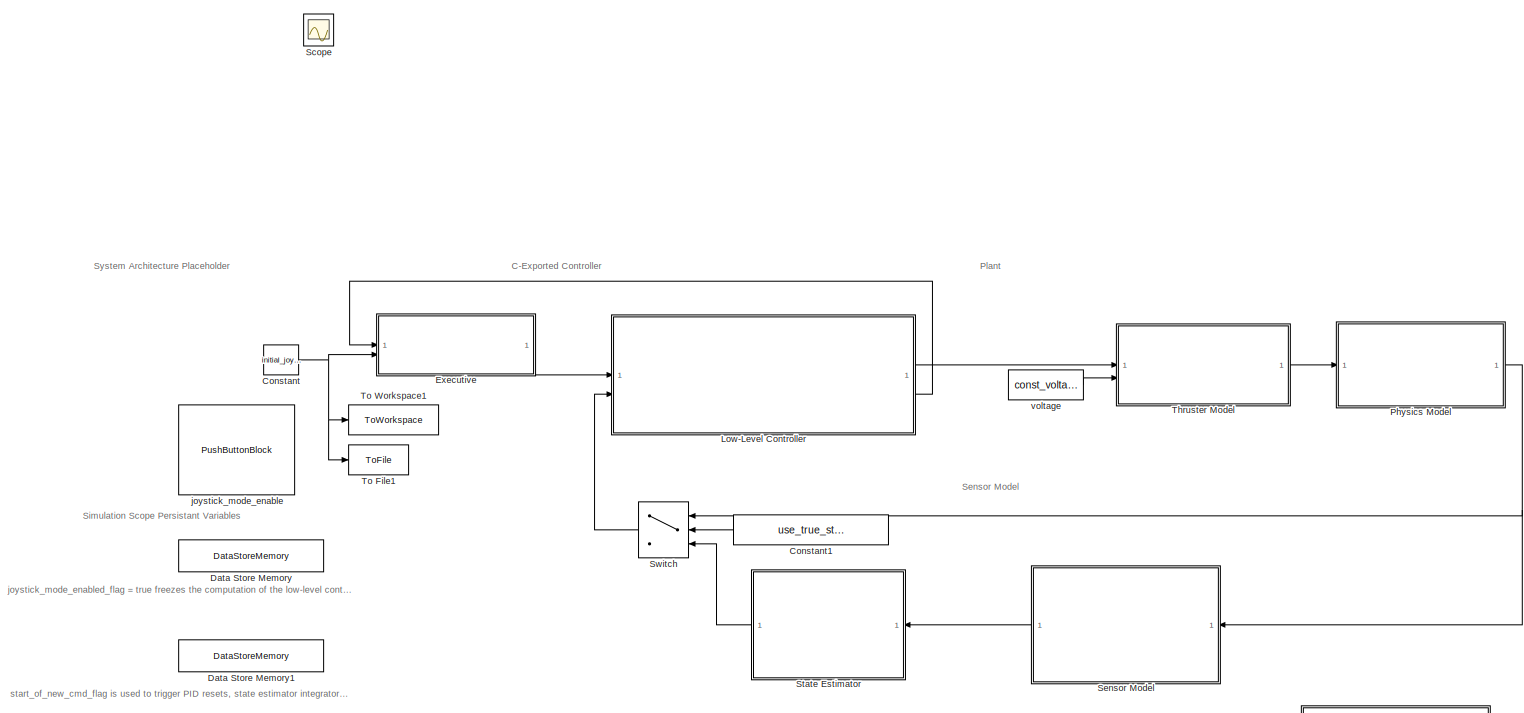
[diagram: root canvas - part 1/2, most of the canvas]
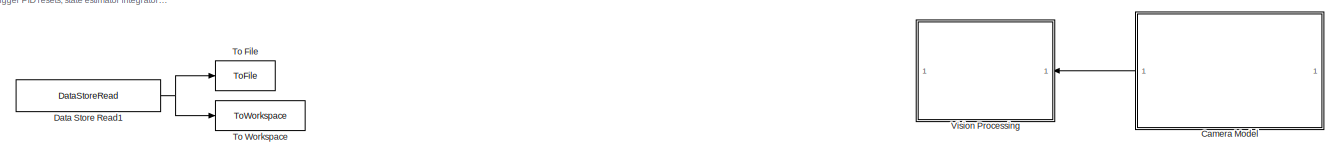
[diagram: root canvas - part 2/2, full width, bottom band]
MODEL slx_aa22800b383f
KIND model
CONFIG AbsTol = abs_tol
CONFIG EnableMultiTasking = off
CONFIG FixedStep = dt_sim
CONFIG MaxStep = auto
CONFIG MinStep = auto
CONFIG RelTol = rel_tol
CONFIG SampleTimeConstraint = Unconstrained
CONFIG SolverName = FixedStepDiscrete
CONFIG StartTime = 0.0
CONFIG StopTime = tspan
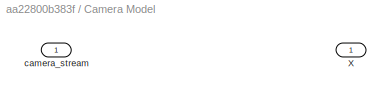
BLOCK [SubSystem] Camera Model
BLOCK [Inport] Camera Model/X
BLOCK [Outport] Camera Model/camera_stream
BLOCK [Constant] Constant
  Value = initial_joystick_mode_enabled_flag
BLOCK [Constant] Constant1
  Value = use_true_state_flag
BLOCK [DataStoreMemory] Data Store Memory
  DataStoreName = joystick_mode_enabled_flag
  InitialValue = initial_joystick_mode_enabled_flag
  OutDataTypeStr = boolean
  ShowAdditionalParam = off
  WriteAfterWriteMsg = warning
BLOCK [DataStoreMemory] Data Store Memory1
  DataStoreName = start_new_cmd_flag
  InitialValue = true
  OutDataTypeStr = boolean
  ShowAdditionalParam = off
  WriteAfterWriteMsg = warning
BLOCK [DataStoreRead] Data Store Read1
  DataStoreName = start_new_cmd_flag
  IndexOptions = Index vector (dialog)
  Indices = 1
  OutputSizes = 1
BLOCK [SubSystem] Executive
  ReferencedSubsystem = Executive
BLOCK [SubSystem] Low-Level Controller
  ReferencedSubsystem = controller
BLOCK [SubSystem] Physics Model
  ReferencedSubsystem = plant
BLOCK [Scope] Scope
  ActiveDisplayYMaximum = 0.79721663606048965
  ActiveDisplayYMinimum = -0.048832566475369238
  Floating = off
  GraphicalSettings = {"Style":{"BackgroundColor":[0.12941176470588237,0.12941176470588237,0.12941176470588237],"AxesColor":[0.07058823529411765,0.07058823529411765,0.07058823529411765],"LabelsColor":[0.8509803921568627,0.8509803921568627,0.8509803921568627],"PreserveColors":false,"Visible":[true,true,true,true,true,true,true,true,true,true,true,true,true],"LineStyle":["-","-","-","-","-","-","-","-","-","-","-","-","-...<+3592ch>
  IOType = viewer
  LayoutDimensionsString = [1,1]
  MultipleDisplayCache = [{"MaxYLimMag":1.125,"MaxYLimReal":0.79721663606048965,"MinYLimMag":0,"MinYLimReal":-0.048832566475369238,"PlotAsMagnitudePhase":false,"ShowGrid":true,"ShowLegend":false,"Title":"%<SignalLabel>","YLabel":""}]
  NumInputPorts = 1
  ScopeFrameLocation = window
  WasSavedAsWebScope = on
  WindowPosition = [1000.000000,510.000000,560.000000,420.000000,]
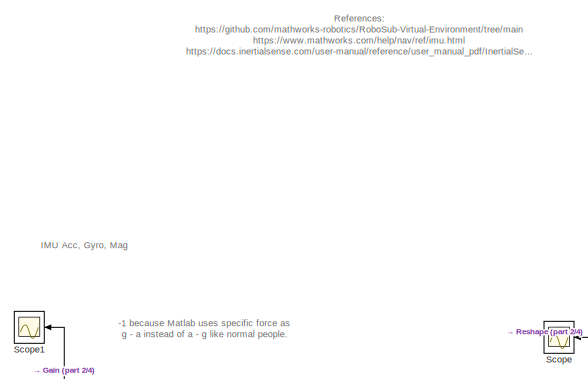
[diagram: Sensor Model - part 1/4, top center region]
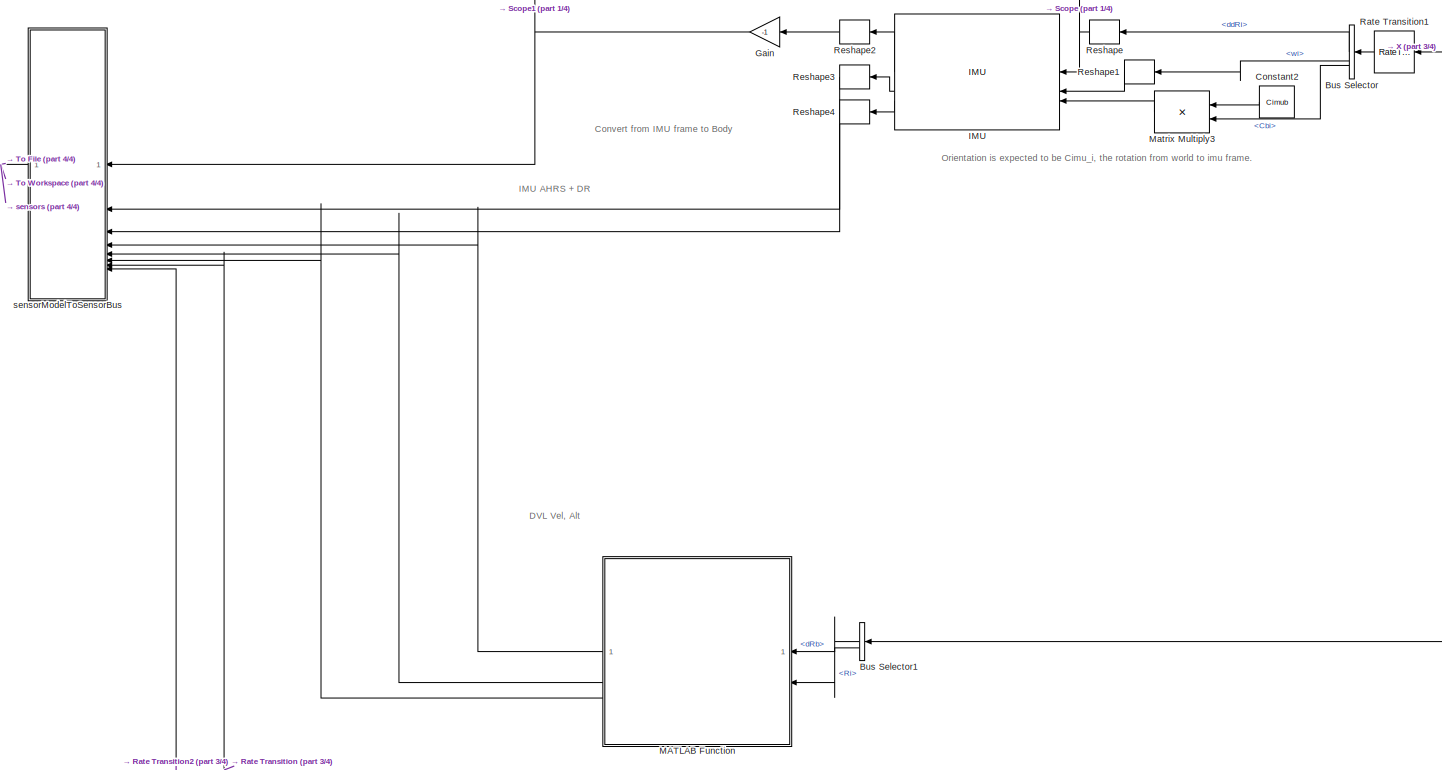
[diagram: Sensor Model - part 2/4, full width, middle band]
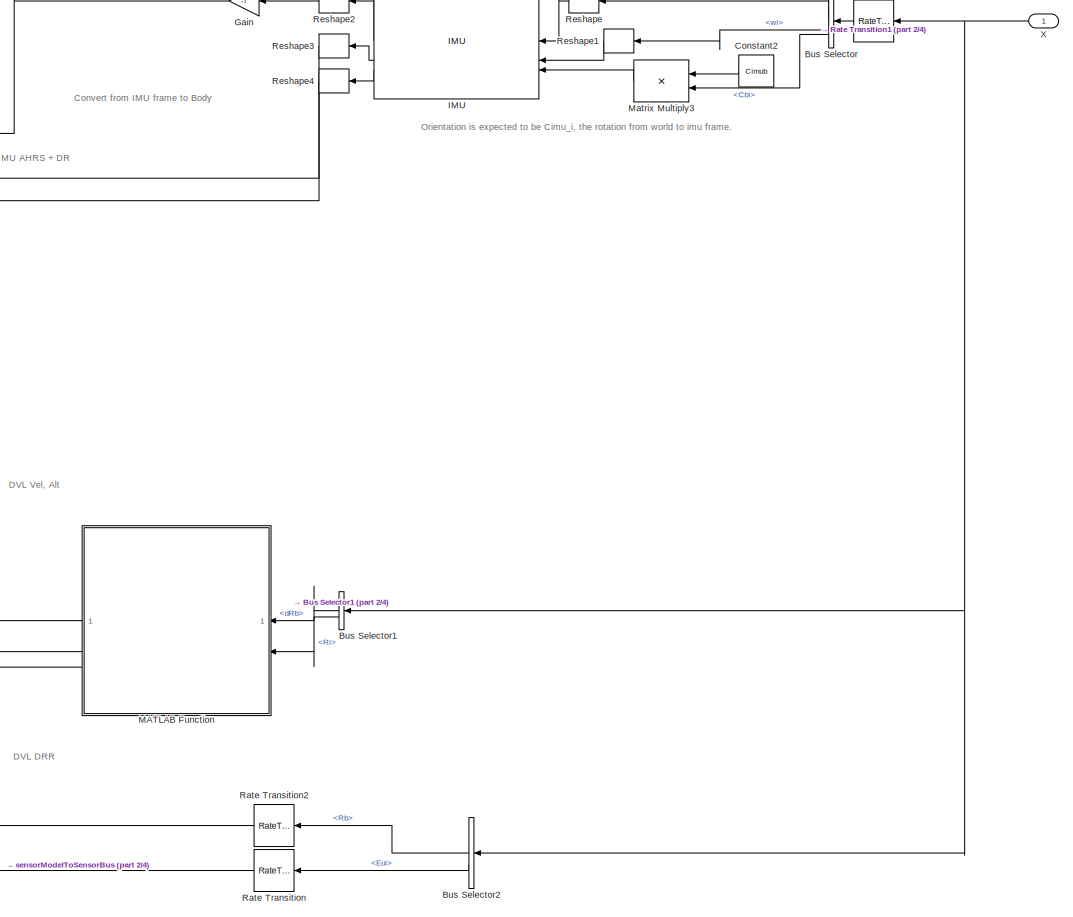
[diagram: Sensor Model - part 3/4, middle right region]
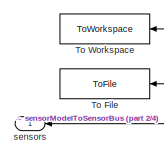
[diagram: Sensor Model - part 4/4, middle left region]
BLOCK [SubSystem] Sensor Model
BLOCK [BusSelector] Sensor Model/Bus Selector
  OutputSignals = ddRi,wi,Cbi
BLOCK [BusSelector] Sensor Model/Bus Selector1
  OutputSignals = dRb,Ri
BLOCK [BusSelector] Sensor Model/Bus Selector2
  OutputSignals = Rb,Eul
BLOCK [Constant] Sensor Model/Constant2
  Value = Cimub
BLOCK [Gain] Sensor Model/Gain
  Gain = -1
BLOCK [Reference] Sensor Model/IMU  REF=mspsensorlib/IMU
  SourceBlock = mspsensorlib/IMU
  SourceType = fusion.simulink.imuSensor
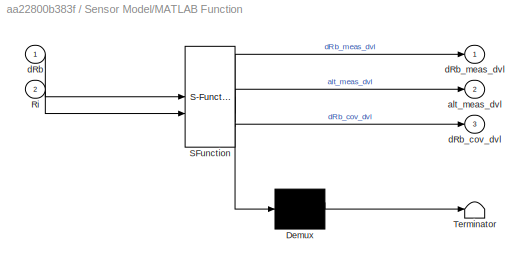
BLOCK [SubSystem] Sensor Model/MATLAB Function
  ErrorFcn = Stateflow.Translate.translate
  PermitHierarchicalResolution = ExplicitOnly
  SFBlockType = MATLAB Function
  TreatAsAtomicUnit = on
BLOCK [Demux] Sensor Model/MATLAB Function/ Demux 
  Outputs = 1
BLOCK [S-Function] Sensor Model/MATLAB Function/ SFunction 
  EnableBusSupport = off
  FunctionName = sf_sfun
  Parameters = dvl
  PortCounts = [2 4]
  SFcnIsStateOwnerBlock = off
  SFunctionDeploymentMode = off
  Tag = Stateflow S-Function 15
BLOCK [Terminator] Sensor Model/MATLAB Function/ Terminator 
BLOCK [Inport] Sensor Model/MATLAB Function/Ri
  Port = 2
BLOCK [Outport] Sensor Model/MATLAB Function/alt_meas_dvl
  Port = 2
BLOCK [Inport] Sensor Model/MATLAB Function/dRb
BLOCK [Outport] Sensor Model/MATLAB Function/dRb_cov_dvl
  Port = 3
BLOCK [Outport] Sensor Model/MATLAB Function/dRb_meas_dvl
BLOCK [Product] Sensor Model/Matrix Multiply3
  Multiplication = Matrix(*)
BLOCK [RateTransition] Sensor Model/Rate Transition
  OutPortSampleTime = dt_dvl
BLOCK [RateTransition] Sensor Model/Rate Transition1
  OutPortSampleTime = dt_imu
BLOCK [RateTransition] Sensor Model/Rate Transition2
  OutPortSampleTime = dt_dvl
BLOCK [Reshape] Sensor Model/Reshape
  OutputDimensionality = Row vector (2-D)
BLOCK [Reshape] Sensor Model/Reshape1
  OutputDimensionality = Row vector (2-D)
BLOCK [Reshape] Sensor Model/Reshape2
  OutputDimensionality = Column vector (2-D)
BLOCK [Reshape] Sensor Model/Reshape3
  OutputDimensionality = Column vector (2-D)
BLOCK [Reshape] Sensor Model/Reshape4
  OutputDimensionality = Column vector (2-D)
BLOCK [Scope] Sensor Model/Scope
  ActiveDisplayYMaximum = 1
  ActiveDisplayYMinimum = -1
  DataLoggingVariableName = ScopeData1
  Floating = off
  GraphicalSettings = {"Style":{"BackgroundColor":[0.12941176470588237,0.12941176470588237,0.12941176470588237],"AxesColor":[0.07058823529411765,0.07058823529411765,0.07058823529411765],"LabelsColor":[0.8509803921568627,0.8509803921568627,0.8509803921568627],"PreserveColors":false,"Visible":[true,true,true],"LineStyle":["-","-","-"],"LineWidth":[1.5,1.5,1.5],"BarWidth":[0.9,0.9,0.9],"LineColor":["auto","auto","auto"],"...<+2143ch>
  MultipleDisplayCache = [{"MaxYLimMag":1,"MaxYLimReal":1,"MinYLimMag":0,"MinYLimReal":-1,"PlotAsMagnitudePhase":false,"ShowGrid":true,"ShowLegend":false,"Title":"%<SignalLabel>","YLabel":""}]
  NumInputPorts = 1
  ScopeFrameLocation = window
  WasSavedAsWebScope = on
  WindowPosition = [680.000000,362.000000,560.000000,420.000000,]
BLOCK [Scope] Sensor Model/Scope1
  ActiveDisplayYMaximum = 1
  ActiveDisplayYMinimum = -1
  DataLoggingVariableName = ScopeData7
  Floating = off
  GraphicalSettings = {"Style":{"BackgroundColor":[0.12941176470588237,0.12941176470588237,0.12941176470588237],"AxesColor":[0.07058823529411765,0.07058823529411765,0.07058823529411765],"LabelsColor":[0.8509803921568627,0.8509803921568627,0.8509803921568627],"PreserveColors":false,"Visible":[true,true,true],"LineStyle":["-","-","-"],"LineWidth":[1.5,1.5,1.5],"BarWidth":[0.9,0.9,0.9],"LineColor":["auto","auto","auto"],"...<+2205ch>
  MultipleDisplayCache = [{"MaxYLimMag":1,"MaxYLimReal":1,"MinYLimMag":0,"MinYLimReal":-1,"PlotAsMagnitudePhase":false,"ShowGrid":true,"ShowLegend":false,"Title":"%<SignalLabel>","YLabel":""}]
  NumInputPorts = 1
  ScopeFrameLocation = window
  WasSavedAsWebScope = on
  WindowPosition = [274.000000,368.000000,560.000000,420.000000,]
BLOCK [ToFile] Sensor Model/To File
  Filename = <userpath>/Github/Robosub/SimulinkPlant/data/2026_05_09_12_19_38/sensors.mat
  MatrixName = sensors
  SaveFormat = Timeseries
BLOCK [ToWorkspace] Sensor Model/To Workspace
  Commented = on
  FixptAsFi = on
  MaxDataPoints = inf
  SampleTime = dt_data
  SaveFormat = Timeseries
  VariableName = sensors
BLOCK [Inport] Sensor Model/X
  OutDataTypeStr = Bus: X_bus
  SampleTime = dt_control
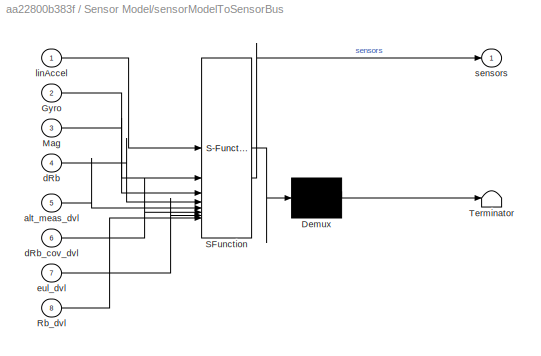
BLOCK [SubSystem] Sensor Model/sensorModelToSensorBus
  ErrorFcn = Stateflow.Translate.translate
  PermitHierarchicalResolution = ExplicitOnly
  SFBlockType = MATLAB Function
  TreatAsAtomicUnit = on
BLOCK [Demux] Sensor Model/sensorModelToSensorBus/ Demux 
  Outputs = 1
BLOCK [S-Function] Sensor Model/sensorModelToSensorBus/ SFunction 
  EnableBusSupport = off
  FunctionName = sf_sfun
  PortCounts = [8 2]
  SFcnIsStateOwnerBlock = off
  SFunctionDeploymentMode = off
  Tag = Stateflow S-Function 22
BLOCK [Terminator] Sensor Model/sensorModelToSensorBus/ Terminator 
BLOCK [Inport] Sensor Model/sensorModelToSensorBus/Gyro
  Port = 2
BLOCK [Inport] Sensor Model/sensorModelToSensorBus/Mag
  Port = 3
BLOCK [Inport] Sensor Model/sensorModelToSensorBus/Rb_dvl
  Port = 8
BLOCK [Inport] Sensor Model/sensorModelToSensorBus/alt_meas_dvl
  Port = 5
BLOCK [Inport] Sensor Model/sensorModelToSensorBus/dRb
  Port = 4
BLOCK [Inport] Sensor Model/sensorModelToSensorBus/dRb_cov_dvl
  Port = 6
BLOCK [Inport] Sensor Model/sensorModelToSensorBus/eul_dvl
  Port = 7
BLOCK [Inport] Sensor Model/sensorModelToSensorBus/linAccel
BLOCK [Outport] Sensor Model/sensorModelToSensorBus/sensors
BLOCK [Outport] Sensor Model/sensors
  OutDataTypeStr = Bus: sensor_bus
  SampleTime = dt_control
BLOCK [SubSystem] State Estimator
  ReferencedSubsystem = State_Estimator
BLOCK [Switch] Switch
  Criteria = u2 ~= 0
  InputSameDT = off
  SaturateOnIntegerOverflow = off
BLOCK [SubSystem] Thruster Model
  ReferencedSubsystem = pwm_to_force
BLOCK [ToFile] To File
  Filename = <userpath>/Github/Robosub/SimulinkPlant/data/2026_05_09_12_19_38/start_new_cmd_flag.mat
  MatrixName = start_new_cmd_flag
  SaveFormat = Timeseries
BLOCK [ToFile] To File1
  Filename = <userpath>/Github/Robosub/SimulinkPlant/data/2026_05_09_12_19_38/joystick_mode_enabled_flag.mat
  MatrixName = joystick_mode_enabled_flag
  SampleTime = dt_data
  SaveFormat = Timeseries
BLOCK [ToWorkspace] To Workspace
  Commented = on
  FixptAsFi = on
  MaxDataPoints = inf
  SampleTime = dt_data
  SaveFormat = Timeseries
  VariableName = start_new_cmd_flag
BLOCK [ToWorkspace] To Workspace1
  Commented = on
  FixptAsFi = on
  MaxDataPoints = inf
  SampleTime = dt_data
  SaveFormat = Timeseries
  VariableName = joystick_mode_enabled_flag
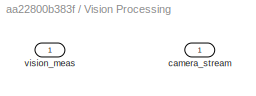
BLOCK [SubSystem] Vision Processing
BLOCK [Inport] Vision Processing/camera_stream
BLOCK [Outport] Vision Processing/vision_meas
BLOCK [PushButtonBlock] joystick_mode_enable
  ButtonType = Latch
  Commented = on
  IconOffColor = [0.0, 1.0, 0.0]
  IconOnColor = [0.0, 0.39215686274509803, 0.0]
  LabelPosition = Top
  OffValue = 0.000000
BLOCK [Constant] voltage
  Value = const_voltage
ANNOTATION (root): C-Exported Controller
ANNOTATION (root): Plant
ANNOTATION (root): Sensor Model
ANNOTATION (root): Simulation Scope Persistant Variables
ANNOTATION (root): System Architecture Placeholder
ANNOTATION (root): joystick_mode_enabled_flag = true freezes the computation of the low-level controller but keeps the state estimator running.
ANNOTATION (root): start_of_new_cmd_flag is used to trigger PID resets, state estimator integrator resets, and creation of body-relative waypoints for certain trick types.
ANNOTATION Sensor Model: -1 because Matlab uses specific force as g - a instead of a - g like normal people.
ANNOTATION Sensor Model: References: https://github.com/mathworks-robotics/RoboSub-Virtual-Environment/tree/main https://www.mathworks.com/help/nav/ref/imu.html https://docs.inertialsense.com/user-manual/reference/user_manual_pdf/InertialSenseDocs.pdf
ANNOTATION Sensor Model: Convert from IMU frame to Body
ANNOTATION Sensor Model: DVL DRR
ANNOTATION Sensor Model: DVL Vel, Alt
ANNOTATION Sensor Model: IMU AHRS + DR
ANNOTATION Sensor Model: IMU Acc, Gyro, Mag
ANNOTATION Sensor Model: Orientation is expected to be Cimu_i, the rotation from world to imu frame.
LINE Camera Model:1 -> Vision Processing:1
LINE Constant1:1 -> Switch:2
NET Constant:1 -> Executive:2, To File1:1, To Workspace1:1
NET Data Store Read1:1 -> To File:1, To Workspace:1
LINE Executive:1 -> Low-Level Controller:1
LINE Low-Level Controller:1 -> Thruster Model:1
LINE Low-Level Controller:2 -> Executive:1
NET Physics Model:1 -> Sensor Model:1, Switch:1
LINE Sensor Model/Bus Selector1:1 -> Sensor Model/MATLAB Function:1
LINE Sensor Model/Bus Selector1:2 -> Sensor Model/MATLAB Function:2
LINE Sensor Model/Bus Selector2:1 -> Sensor Model/Rate Transition2:1
LINE Sensor Model/Bus Selector2:2 -> Sensor Model/Rate Transition:1
LINE Sensor Model/Bus Selector:1 -> Sensor Model/Reshape:1
LINE Sensor Model/Bus Selector:2 -> Sensor Model/Reshape1:1
LINE Sensor Model/Bus Selector:3 -> Sensor Model/Matrix Multiply3:2
LINE Sensor Model/Constant2:1 -> Sensor Model/Matrix Multiply3:1
NET Sensor Model/Gain:1 -> Sensor Model/Scope1:1, Sensor Model/sensorModelToSensorBus:1
LINE Sensor Model/IMU:1 -> Sensor Model/Reshape2:1
LINE Sensor Model/IMU:2 -> Sensor Model/Reshape3:1
LINE Sensor Model/IMU:3 -> Sensor Model/Reshape4:1
LINE Sensor Model/MATLAB Function:1 -> Sensor Model/sensorModelToSensorBus:4
LINE Sensor Model/MATLAB Function:2 -> Sensor Model/sensorModelToSensorBus:5
LINE Sensor Model/MATLAB Function:3 -> Sensor Model/sensorModelToSensorBus:6
LINE Sensor Model/Matrix Multiply3:1 -> Sensor Model/IMU:3
LINE Sensor Model/Rate Transition1:1 -> Sensor Model/Bus Selector:1
LINE Sensor Model/Rate Transition2:1 -> Sensor Model/sensorModelToSensorBus:8
LINE Sensor Model/Rate Transition:1 -> Sensor Model/sensorModelToSensorBus:7
LINE Sensor Model/Reshape1:1 -> Sensor Model/IMU:2
LINE Sensor Model/Reshape2:1 -> Sensor Model/Gain:1
LINE Sensor Model/Reshape3:1 -> Sensor Model/sensorModelToSensorBus:2
LINE Sensor Model/Reshape4:1 -> Sensor Model/sensorModelToSensorBus:3
NET Sensor Model/Reshape:1 -> Sensor Model/IMU:1, Sensor Model/Scope:1
NET Sensor Model/X:1 -> Sensor Model/Bus Selector1:1, Sensor Model/Bus Selector2:1, Sensor Model/Rate Transition1:1
NET Sensor Model/sensorModelToSensorBus:1 -> Sensor Model/To File:1, Sensor Model/To Workspace:1, Sensor Model/sensors:1
LINE Sensor Model:1 -> State Estimator:1
LINE State Estimator:1 -> Switch:3
LINE Switch:1 -> Low-Level Controller:2
LINE Thruster Model:1 -> Physics Model:1
LINE voltage:1 -> Thruster Model:2
note: NET lines group one-source signal fan-out (src -> all destinations, sorted); 1:1 wires keep LINE
CHART Sensor Model/MATLAB Function states=1 transitions=1
  STATE_LABEL 'eML_blk_kernel()'
  STATE_LABEL 'SCRIPT:\nfunction [dRb_meas_dvl, alt_meas_dvl, dRb_cov_dvl] = dvl_sim(dRb, Ri,dvl)\n%{\nModel from this repository:\nhttps://github.com/mathworks-robotics/RoboSub-Virtual-Environment/\nNeed to modify this to give erroneous or no reading when ground lock is\navailable.\n\nAlso need to add noise to the altitude measurement and determine if it\nneeds modification based on attitude.\n%}\n%get altitude (assumes R...<+812ch>'
CHART Sensor Model/sensorModelToSensorBus states=1 transitions=1
  STATE_LABEL 'eML_blk_kernel()'
  STATE_LABEL 'SCRIPT:\nfunction sensors = fcn(linAccel,Gyro,Mag,dRb,alt_meas_dvl,dRb_cov_dvl, eul_dvl, Rb_dvl)\n\nsensors = sensorModelToSensorBus(linAccel,Gyro,Mag,dRb,alt_meas_dvl,dRb_cov_dvl, eul_dvl, Rb_dvl);\n\n'
CHART  states=0 transitions=0
CHART  states=0 transitions=0
